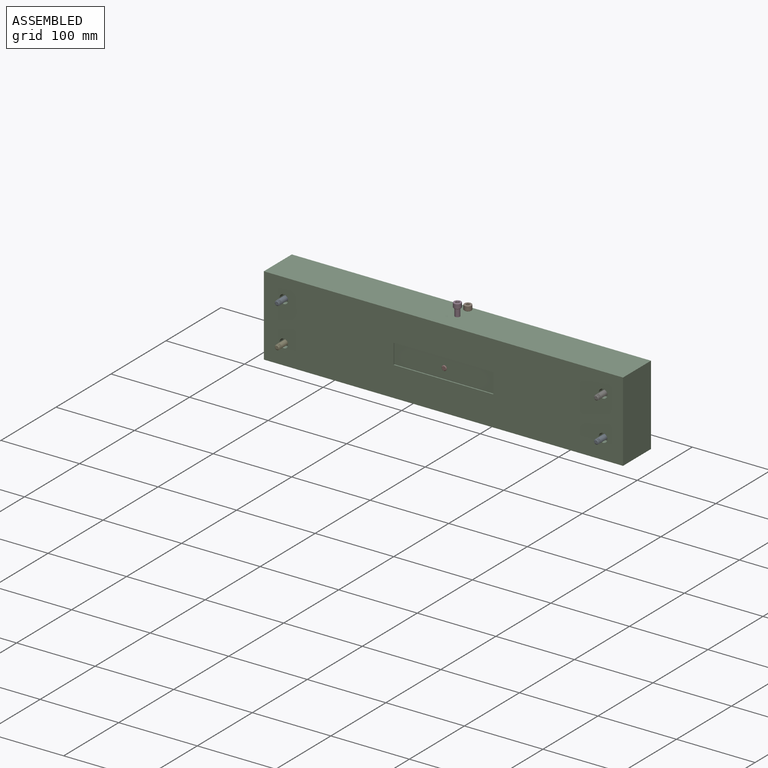
[diagram: assembled view]
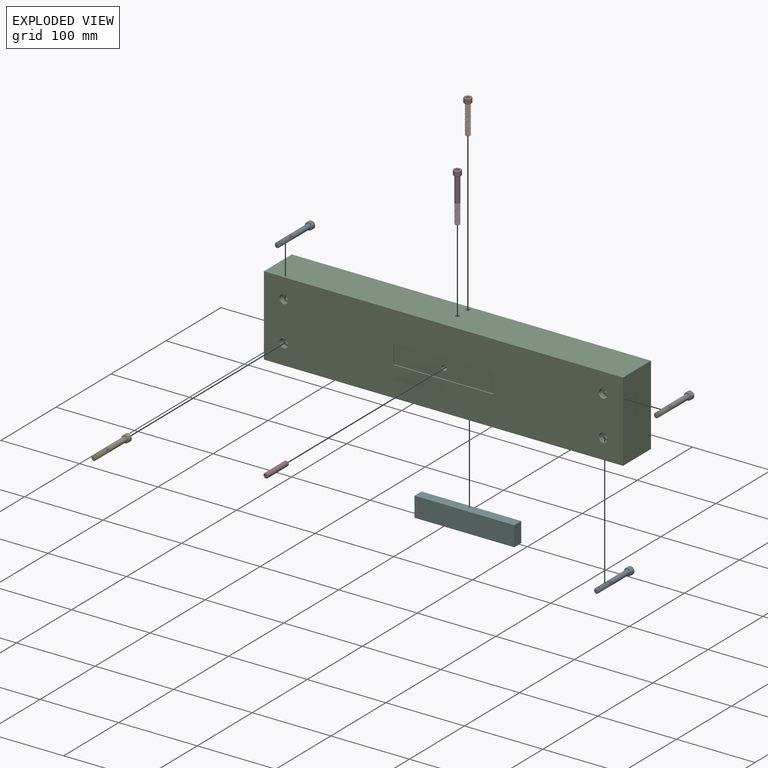
[diagram: exploded view]
GUIDED TOUR — MATED ASSEMBLY (Onshape document 1fcec8c5e49b1f9c84faa3c9, AutoMate assembly 1fcec8c5e49b1f9c84faa3c9_30f333a7dc662cd5ad715a2b_92948891892178a799b8ff19_default)

This assembly has 9 components, labeled P0..P8 below (a component is one placed occurrence of a part; the same part can appear more than once), held together by 8 mates. A mate is a constraint between two components; its type names the relative motion it leaves free:
  CYLINDRICAL — leaves both rotation about and translation along the listed axis free,
  FASTENED — locks the two components together rigidly (no relative motion).
Axis/direction vectors are unit vectors and 'through' points are millimeter coordinates, both in the assembly's world frame.

MATES
  1. FASTENED "Fastened 2": P5 <-> P2, direction (0.000, 0.000, -1.000) through (35.10, -15.30, -119.04) mm
  2. FASTENED "Fastened 6": P2 <-> P0, direction (0.000, 1.000, 0.000) through (238.30, -15.30, -131.74) mm
  3. CYLINDRICAL "Cylindrical 2": P1 <-> P2, axis (0.000, 0.000, -1.000) through (35.10, -15.30, -93.61) mm
  4. FASTENED "Fastened 5": P2 <-> P6, direction (0.000, 1.000, 0.000) through (238.30, -15.30, -80.94) mm
  5. CYLINDRICAL "Cylindrical 1": P2 <-> P3, axis (0.000, 0.000, 1.000) through (35.10, -34.35, -55.54) mm
  6. FASTENED "Fastened 7": P2 <-> P8, direction (0.000, 1.000, 0.000) through (-168.10, -15.30, -80.94) mm
  7. FASTENED "Fastened 1": P2 <-> P7, direction (0.000, 1.000, 0.000) through (35.10, -21.65, -106.34) mm
  8. FASTENED "Fastened 4": P2 <-> P4, direction (0.000, -1.000, 0.000) through (-168.10, -15.30, -131.74) mm

ASSEMBLY ORDER
  1. P2 — the base component [order heuristic]
  2. P5 — core [order heuristic]
  3. P3 — core [order heuristic]
  4. P4 — core [order heuristic]
  5. P1 — core [order heuristic]
  6. P8 [order verified]
  7. P6 [order verified]
  8. P0 [order verified]
  9. P7 [order verified]
(P0, P6, P8 verified with a relaxed clearance tolerance: the source model stores slight part interference there.)
Order-tag legend:
  [order verified] — this step's position reverses a verified removal order: the component was checked to insert without passing through the ones already placed.
  [order heuristic] — the first 5 components form the assembly's core: parts whose collision-free extraction could not be verified, listed in mate-graph order.

Of the 9 components, 1 carries the full construction recipe — the FeatureScript program that regenerates the part's solid from scratch; the rest are supplied as boundary geometry only.
Each toured component is shown spotlighted twice — in the assembled view, then in the exploded view, where a leader line traces a displaced component back to its assembled socket (saturated green if recipe-attached, orange if geometry-only; every other component desaturated gray) — followed by its recipe or geometry summary and the mates that hold it.
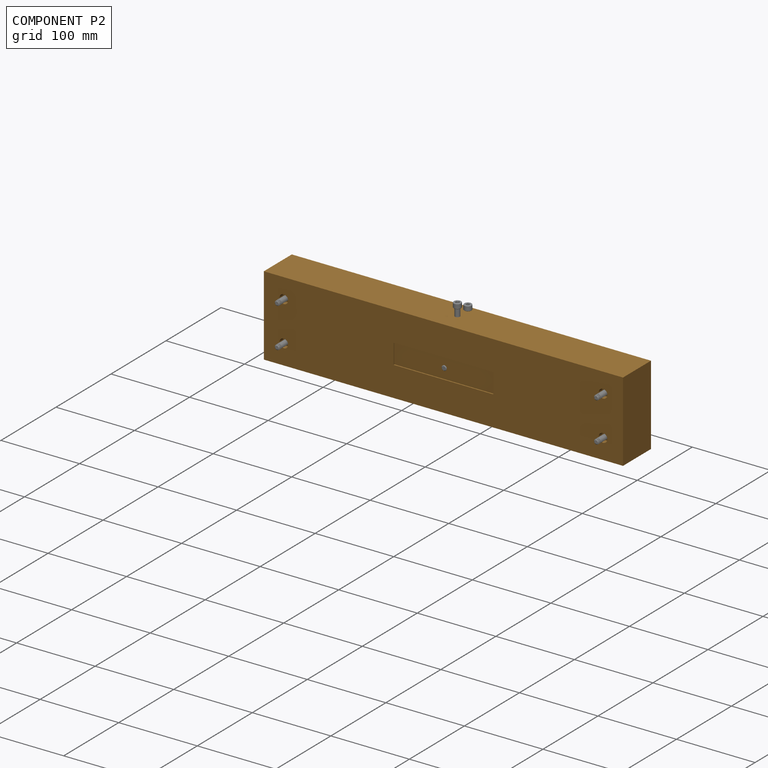
[diagram: component P2 — assembled]
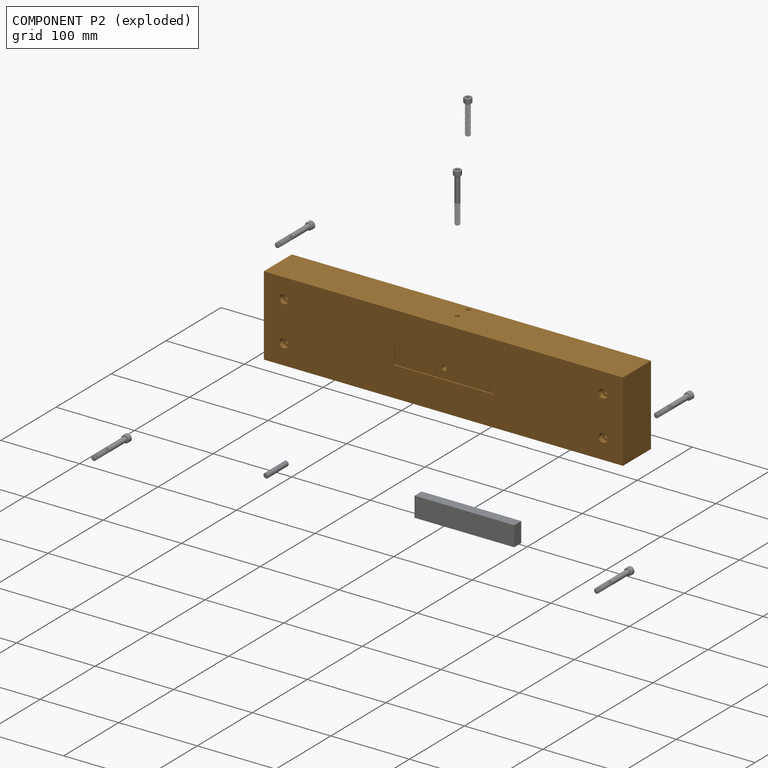
[diagram: component P2 — exploded]
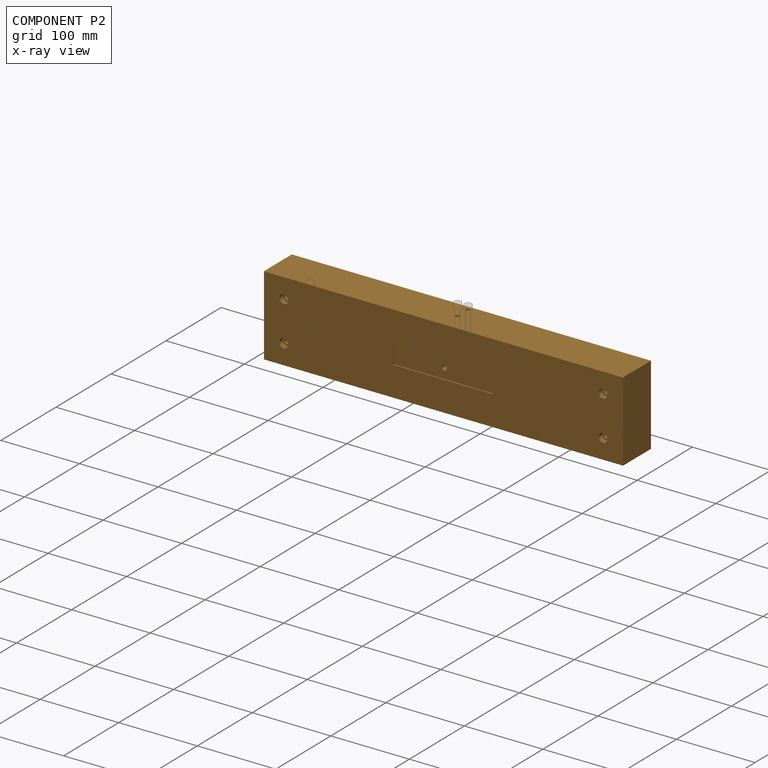
[diagram: component P2 — x-ray view]
COMPONENT P2 — geometry summary (no construction recipe available for this part):
  bounding box: 457.2 x 101.6 x 50.8 mm
  B-rep topology: 1 solid, 39 faces, 172 edges
  volume: 2300474 mm^3 (97% of its bounding box)
  symmetry: mirror-symmetric across its x mid-plane
Held by: FASTENED mate "Fastened 2" to P5; FASTENED mate "Fastened 6" to P0; CYLINDRICAL mate "Cylindrical 2" to P1; FASTENED mate "Fastened 5" to P6; CYLINDRICAL mate "Cylindrical 1" to P3; FASTENED mate "Fastened 7" to P8; FASTENED mate "Fastened 1" to P7; FASTENED mate "Fastened 4" to P4.
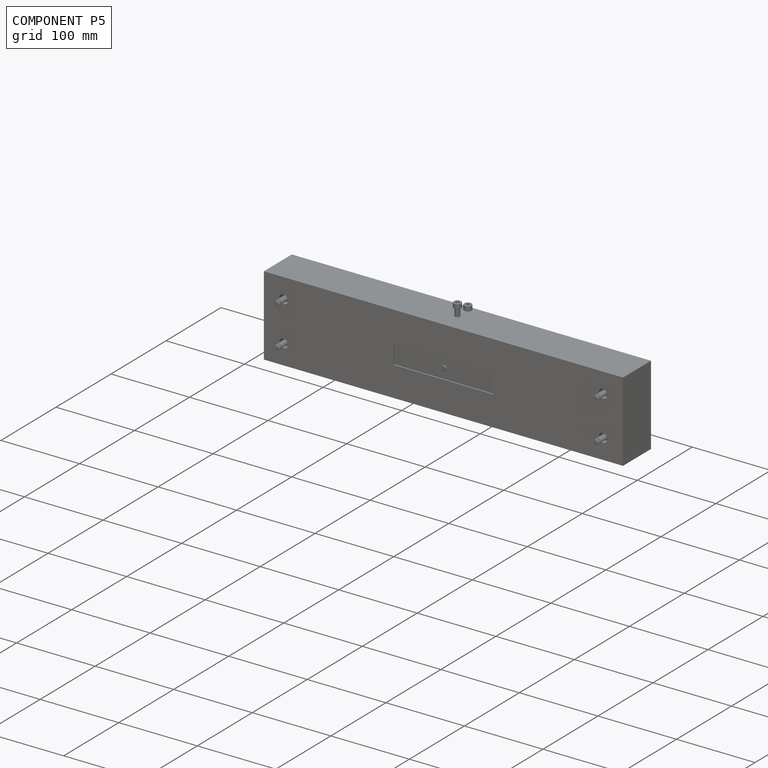
[diagram: component P5 — assembled]
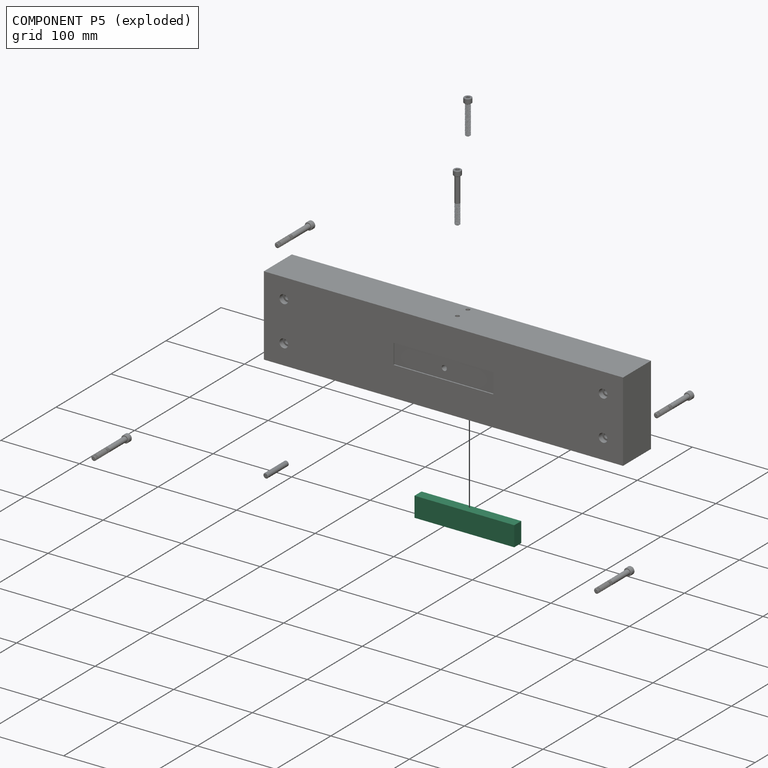
[diagram: component P5 — exploded]
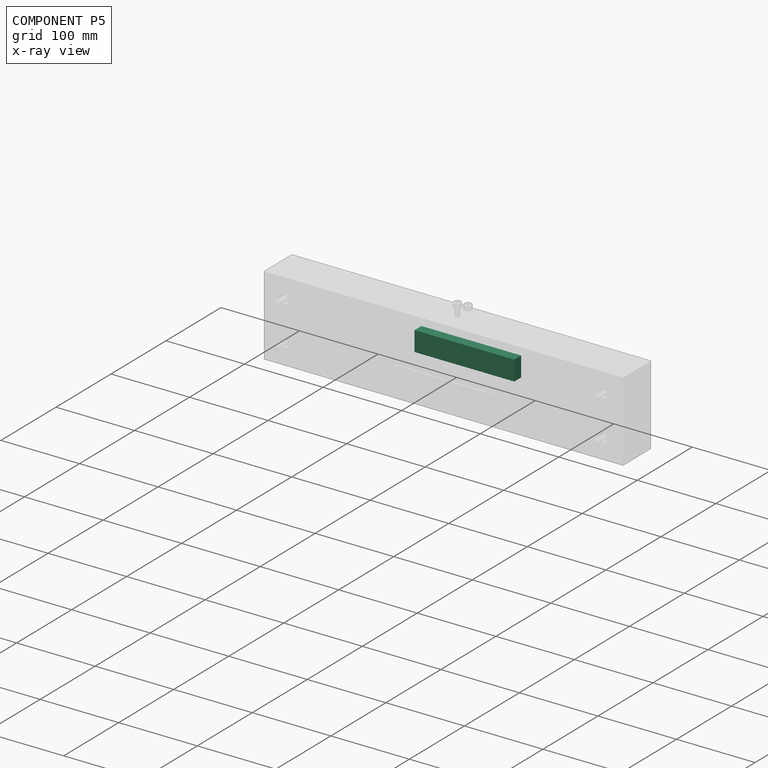
[diagram: component P5 — x-ray view]
COMPONENT P5 — recipe-attached (CADFS 00336776, mesh-verified: the recipe's output STEP matches this component's geometry to below the mesh-comparison resolution (tessellation chordal tolerance ~0.195 mm)).
Held by: FASTENED mate "Fastened 2" to P2.
Construction recipe (FeatureScript — the CAD program that rebuilds this solid; sketch coordinates are in the units given by the * unit suffixes, e.g. mm):

FeatureScript 1511;
import(path : "onshape/std/geometry.fs", version : "1511.0");
import(path : "onshape/std/common.fs", version : "1511.0");
const mm = millimeter;
const VERTEX = EntityType.VERTEX;
const EDGE = EntityType.EDGE;
const FACE = EntityType.FACE;
const BODY = EntityType.BODY;
function v(x, y){return vector(x, y);}
function OD(order){return orderDisambiguation(order);}
function OSD(set){return originalSetDisambiguation(set);}
function TD(topology){return topologyDisambiguation(topology);}
function TDD(query){return trueDependencyDisambiguation(query);}
function sQuery(a, b, c) {return sketchEntityQuery(a, b, c);}

annotation { "Feature Type Name" : "Feature", "Feature Type Description" : "" }
export const myFeature = defineFeature(function(context is Context, id is Id, definition is map)
    precondition{}
    {
        {
            var Q0;
            Q0=qCreatedBy(makeId("Top.planeOp"),FACE);
            var sketch = newSketch(context, id + "F0", { "sketchPlane" : qUnion([Q0])});
            skLineSegment(sketch, "E0.bottom", {"start": v(0, 0) * mm, "end": v(25.4, 0) * mm});
            skLineSegment(sketch, "E0.top", {"start": v(0, 12.7) * mm, "end": v(25.4, 12.7) * mm});
            skLineSegment(sketch, "E0.left", {"start": v(0, 0) * mm, "end": v(0, 12.7) * mm});
            skLineSegment(sketch, "E0.right", {"start": v(25.4, 0) * mm, "end": v(25.4, 12.7) * mm});
            skSolve(sketch);
        }
        {
            var Q0;
            Q0=makeQuery(id+"F0.imprint","IMPRINT",FACE,{"disambiguationData":[TD([[makeQuery(id+"F0.imprint","IMPRINT",EDGE,{"derivedFrom":sQuery(id+"F0.wireOp",EDGE,"E0.bottom")}),1.0]])]});
            extrude(context, id + "F1", {"entities" : qUnion([Q0]), "depth" : 127 * mm});
        }
        {
            var Q0;
            Q0=makeQuery(id+"F1.opExtrude","SWEPT_FACE",FACE,{"disambiguationData":[OSD([sQuery(id+"F0.wireOp",EDGE,"E0.top")])]});
            var sketch = newSketch(context, id + "F2", { "sketchPlane" : qUnion([Q0])});
            skLineSegment(sketch, "E1.left", {"start": v(-10.98, 25.4) * mm, "end": v(-10.98, 101.6) * mm});
            skLineSegment(sketch, "E1.right", {"start": v(-14.16, 25.4) * mm, "end": v(-14.16, 101.6) * mm});
            skPoint(sketch, "E2", {"position": v(-12.57, 22.86) * mm});
            skLineSegment(sketch, "E3", {"start": v(-10.98, 25.4) * mm, "end": v(-12.57, 22.86) * mm});
            skLineSegment(sketch, "E4", {"start": v(-14.16, 25.4) * mm, "end": v(-12.57, 22.86) * mm});
            skPoint(sketch, "E5", {"position": v(-12.57, 104.14) * mm});
            skLineSegment(sketch, "E6", {"start": v(-10.98, 101.6) * mm, "end": v(-12.57, 104.14) * mm});
            skLineSegment(sketch, "E7", {"start": v(-12.57, 104.14) * mm, "end": v(-14.16, 101.6) * mm});
            skSolve(sketch);
        }
        {
            var Q0;
            Q0=makeQuery(id+"F2.imprint","IMPRINT",FACE,{"disambiguationData":[TD([[makeQuery(id+"F2.imprint","IMPRINT",EDGE,{"derivedFrom":sQuery(id+"F2.wireOp",EDGE,"E1.left")}),1.0]])]});
            extrude(context, id + "F3", {"entities" : qUnion([Q0]), "operationType" : NewBodyOperationType.REMOVE, "oppositeDirection" : true, "depth" : 3.17 * mm});
        }
    });
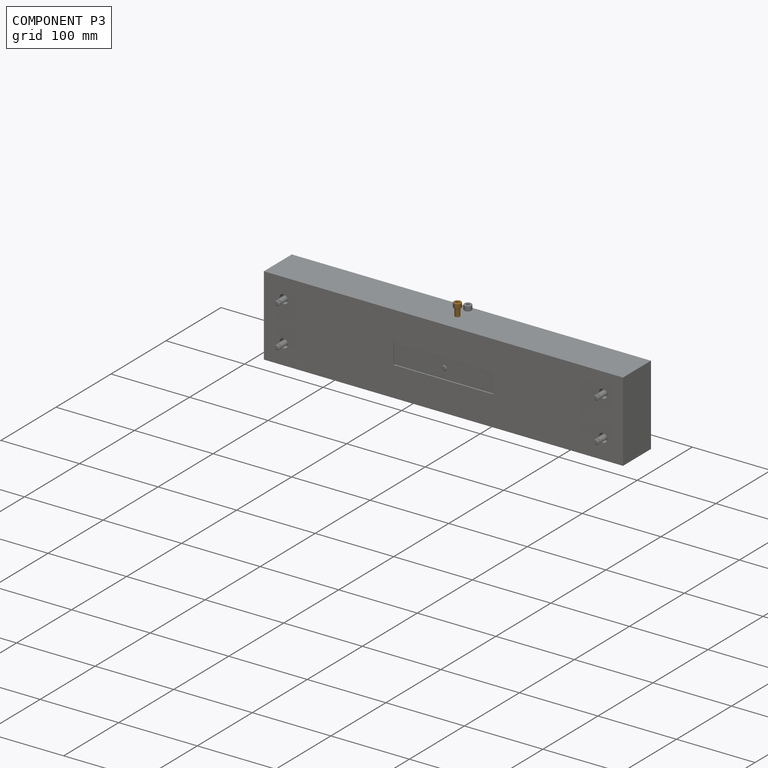
[diagram: component P3 — assembled]
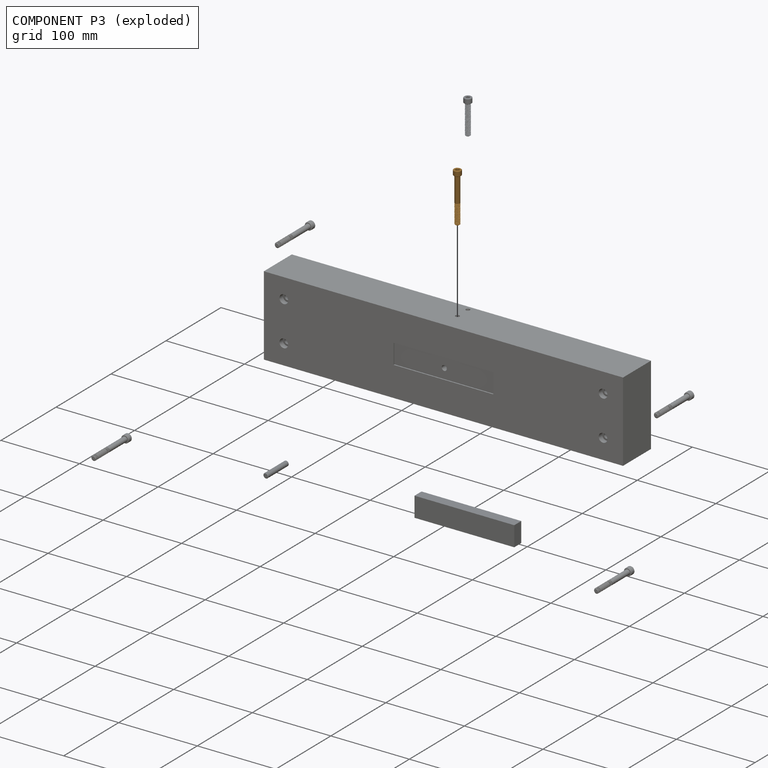
[diagram: component P3 — exploded]
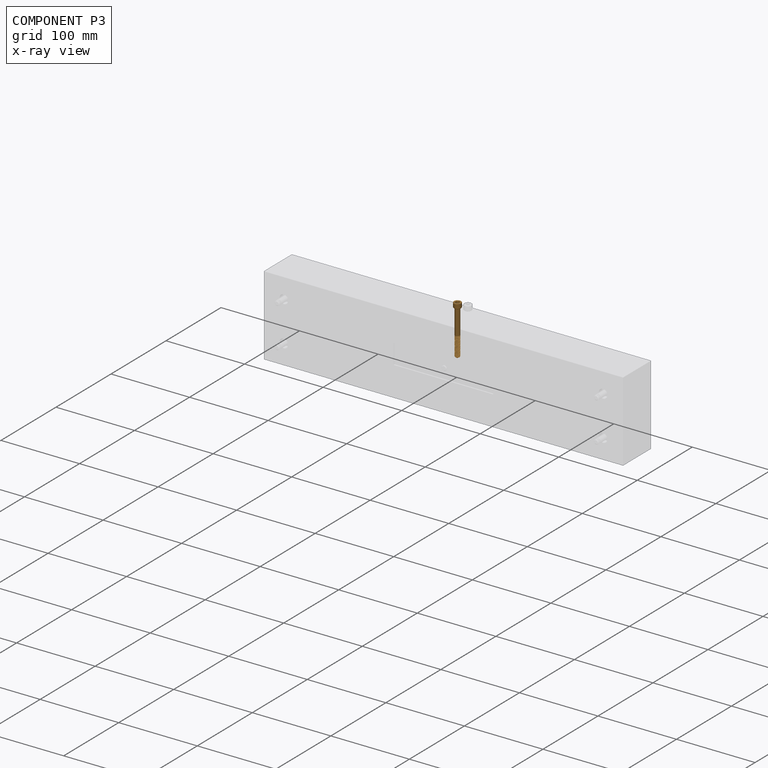
[diagram: component P3 — x-ray view]
COMPONENT P3 — geometry summary (no construction recipe available for this part):
  bounding box: 64.5 x 10.0 x 10.0 mm
  B-rep topology: 1 solid, 44 faces, 212 edges
  volume: 2040 mm^3 (32% of its bounding box)
Held by: CYLINDRICAL mate "Cylindrical 1" to P2.
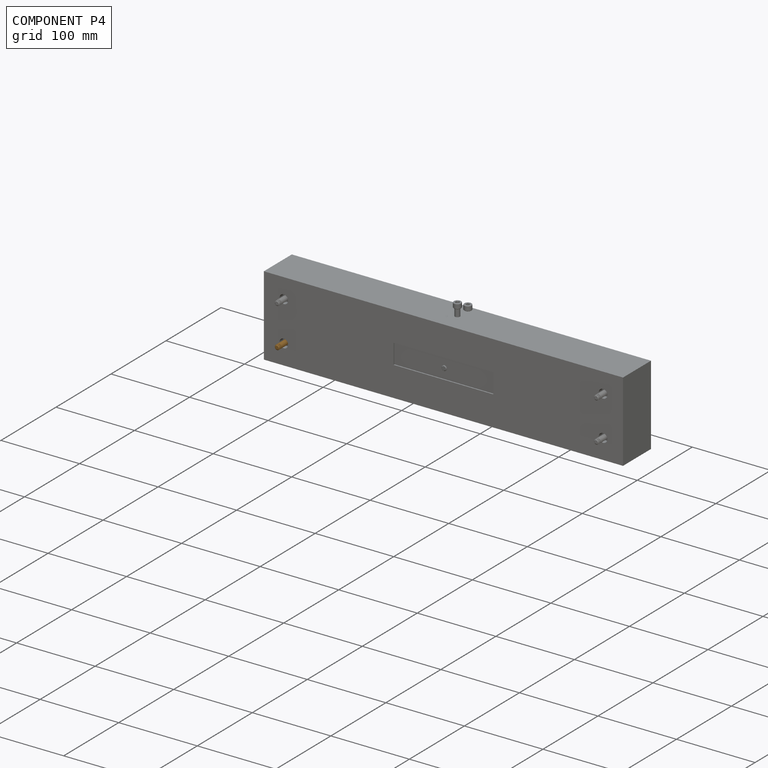
[diagram: component P4 — assembled]
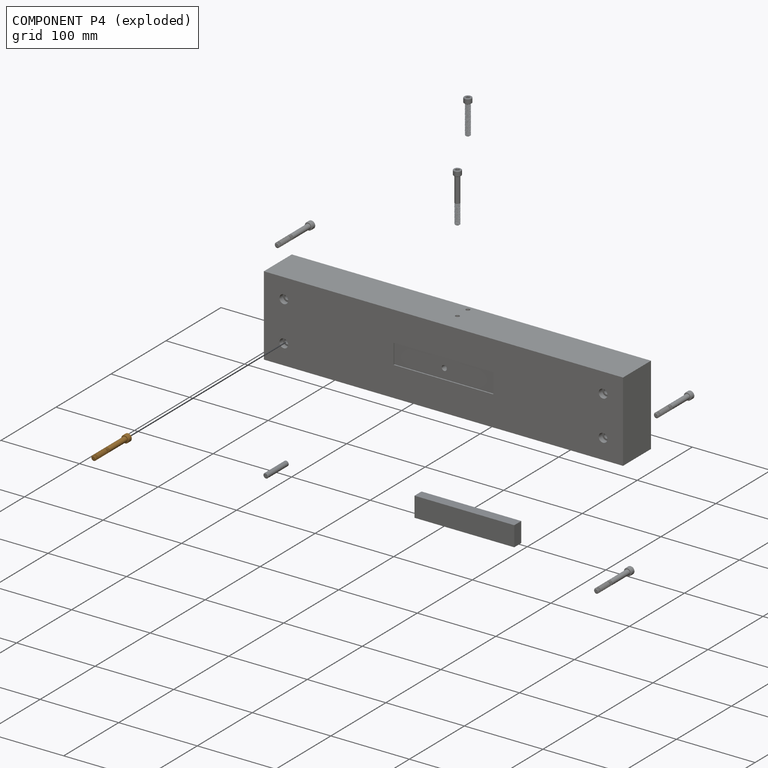
[diagram: component P4 — exploded]
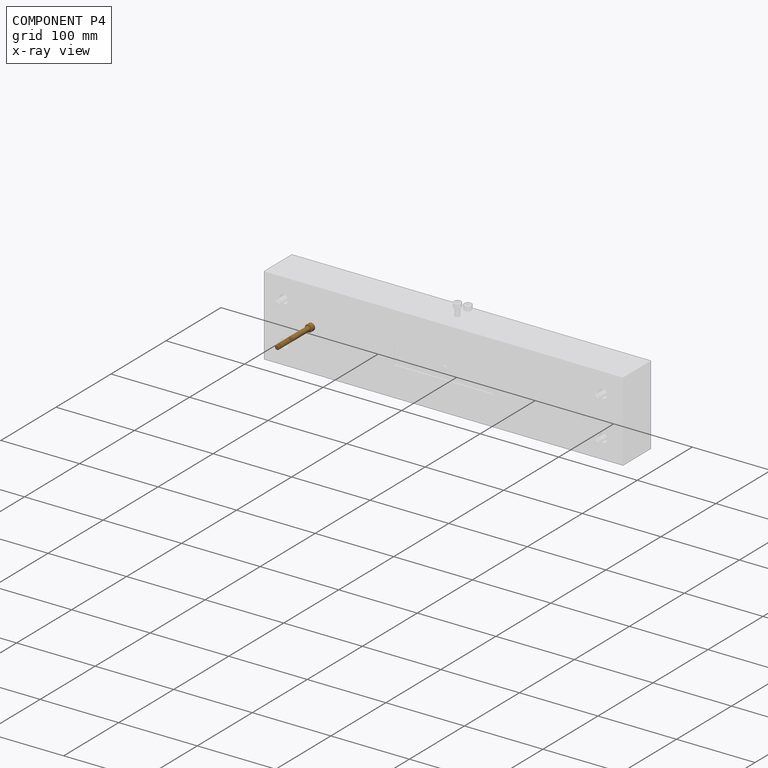
[diagram: component P4 — x-ray view]
COMPONENT P4 — geometry summary (no construction recipe available for this part):
  bounding box: 64.5 x 10.0 x 10.0 mm
  B-rep topology: 1 solid, 44 faces, 212 edges
  volume: 2040 mm^3 (32% of its bounding box)
Held by: FASTENED mate "Fastened 4" to P2.
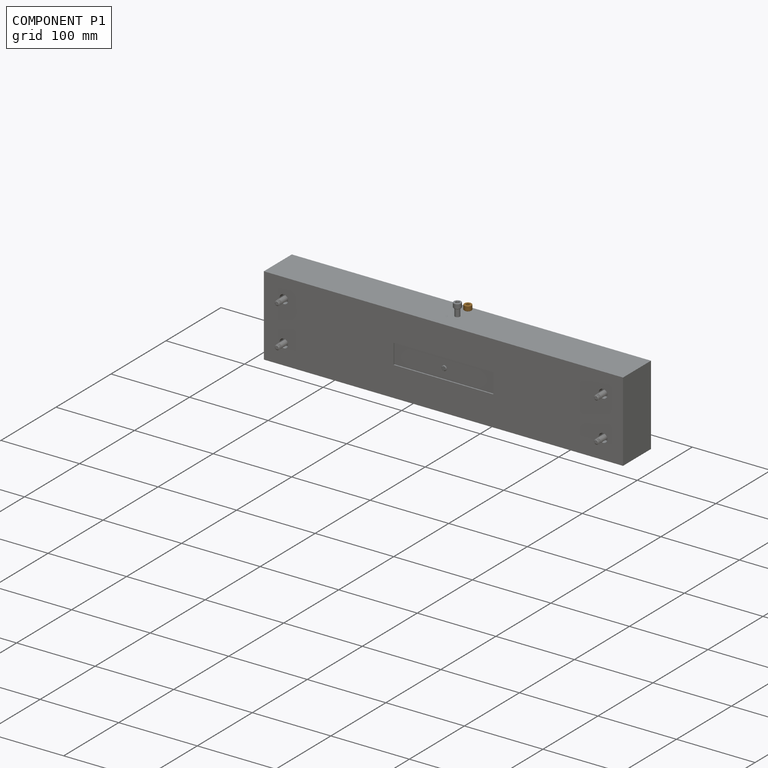
[diagram: component P1 — assembled]
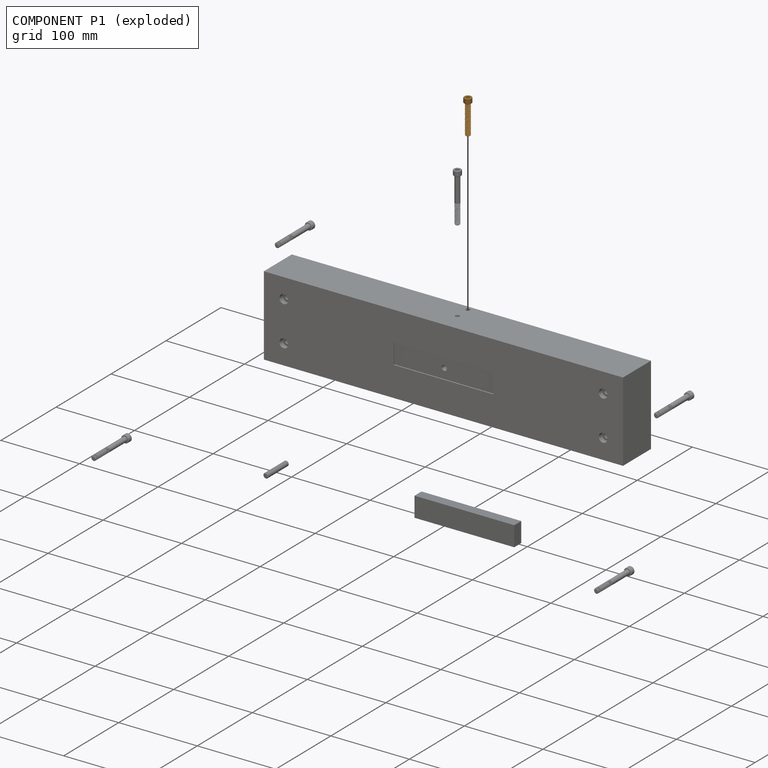
[diagram: component P1 — exploded]
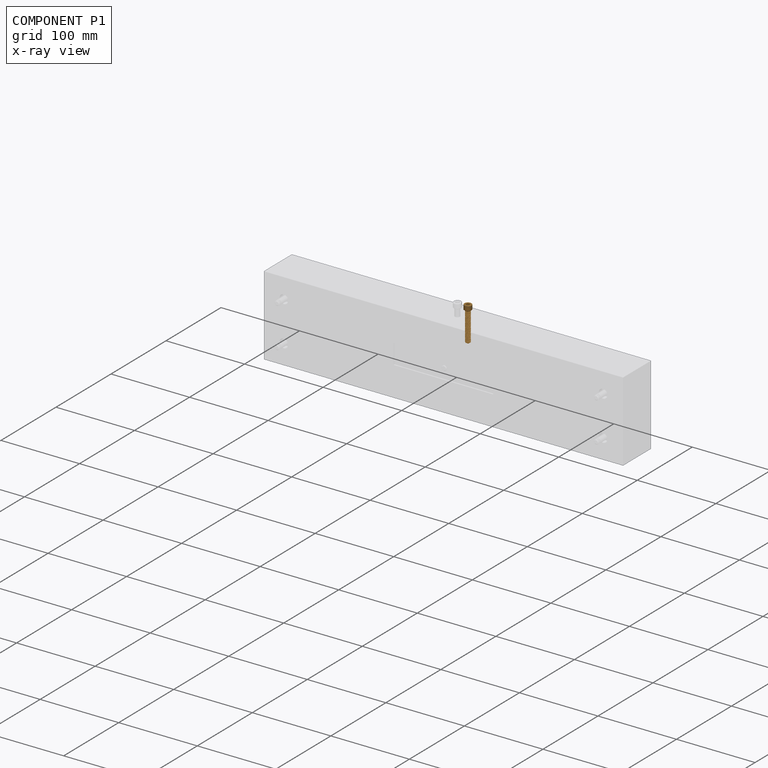
[diagram: component P1 — x-ray view]
COMPONENT P1 — geometry summary (no construction recipe available for this part):
  bounding box: 46.0 x 10.6 x 10.6 mm
  B-rep topology: 1 solid, 24 faces, 92 edges
  volume: 1100 mm^3 (21% of its bounding box)
  symmetry: revolution-symmetric about the y axis through its bounding-box center
Held by: CYLINDRICAL mate "Cylindrical 2" to P2.
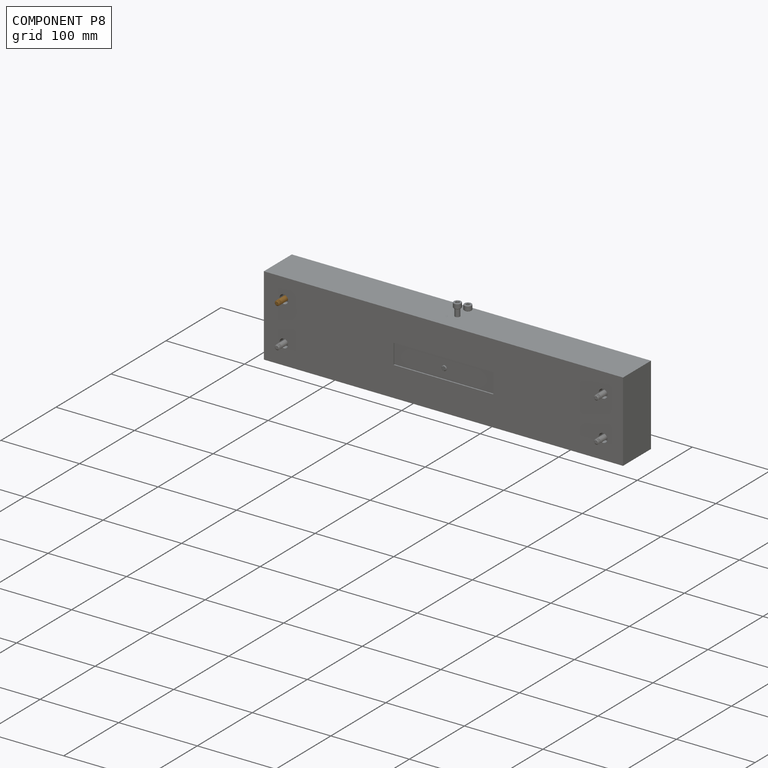
[diagram: component P8 — assembled]
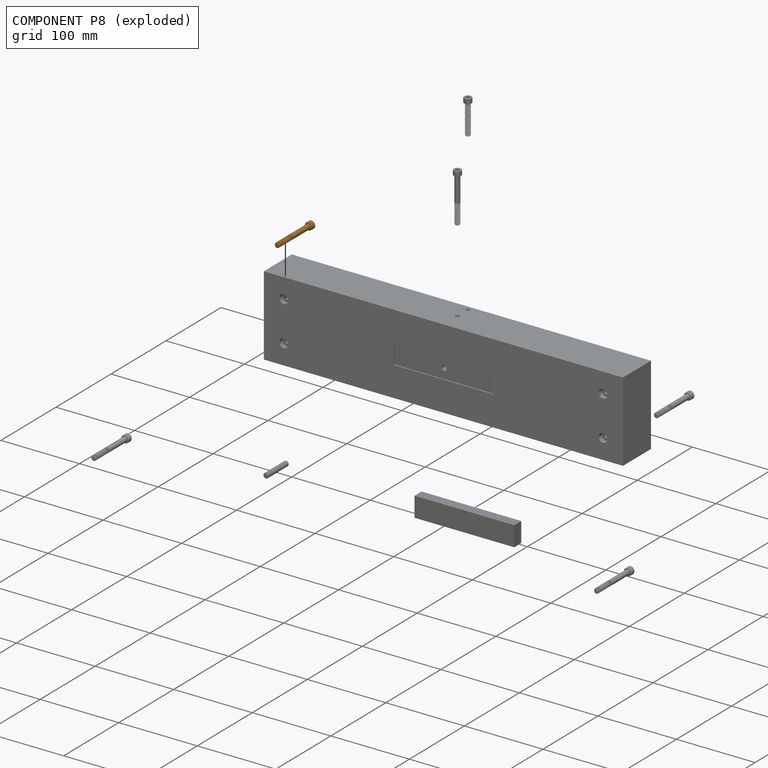
[diagram: component P8 — exploded]
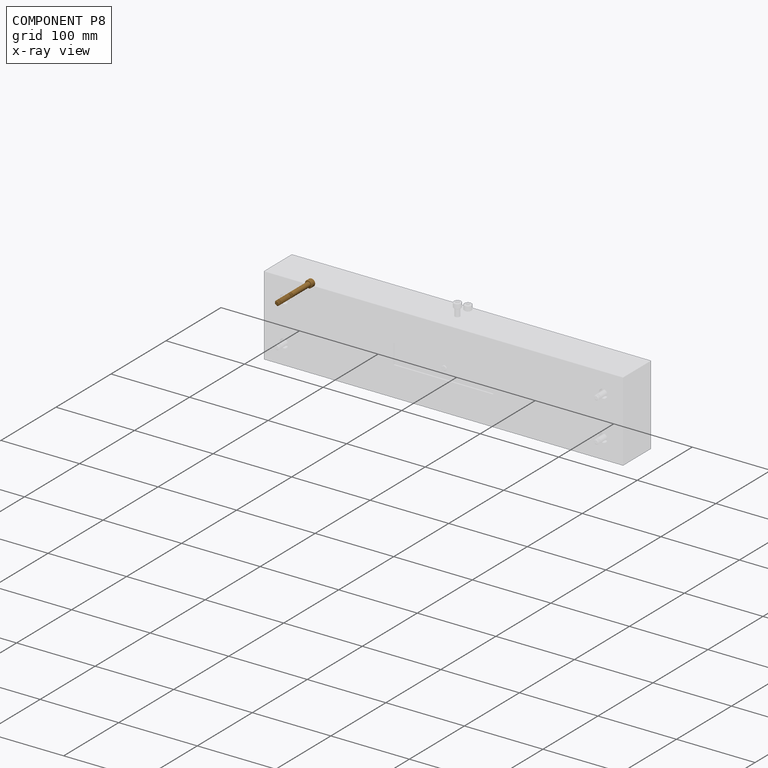
[diagram: component P8 — x-ray view]
COMPONENT P8 — geometry summary (no construction recipe available for this part):
  bounding box: 64.5 x 10.0 x 10.0 mm
  B-rep topology: 1 solid, 44 faces, 212 edges
  volume: 2040 mm^3 (32% of its bounding box)
Held by: FASTENED mate "Fastened 7" to P2.
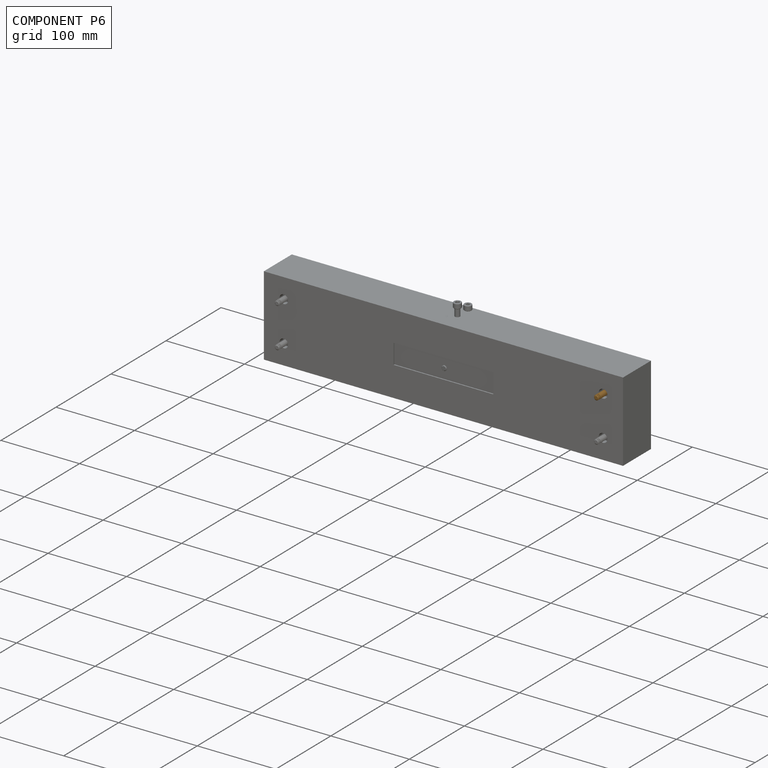
[diagram: component P6 — assembled]
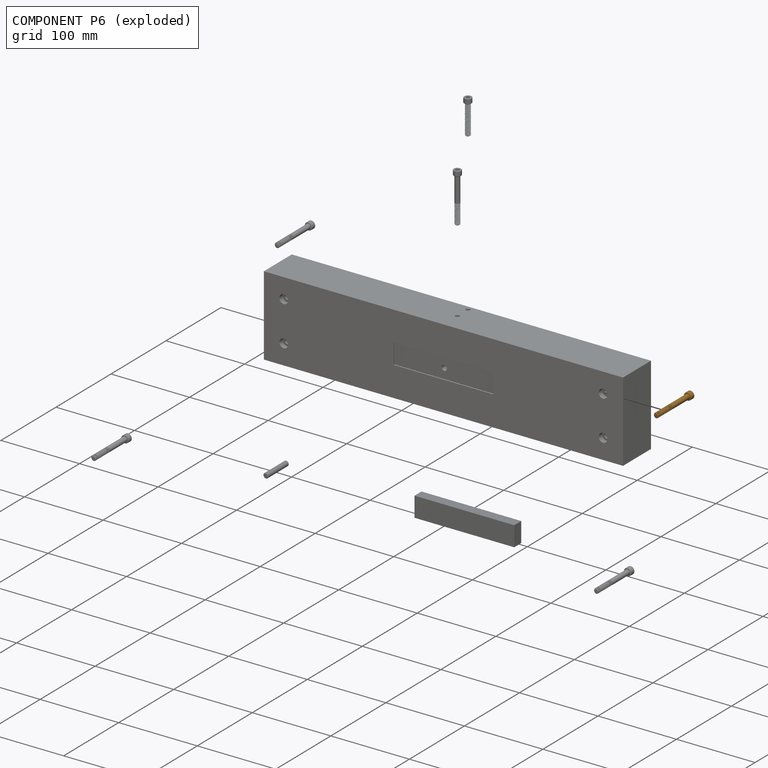
[diagram: component P6 — exploded]
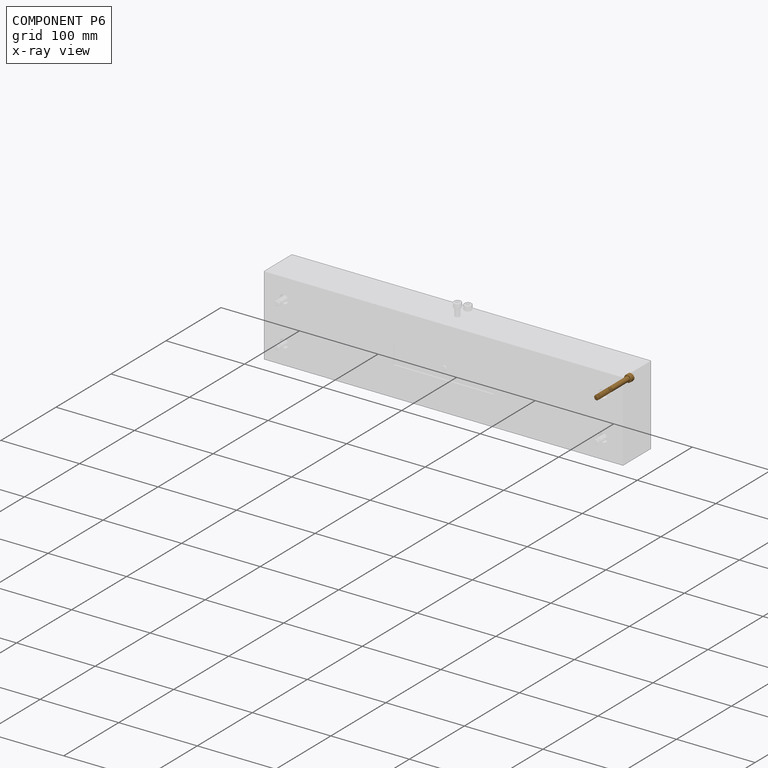
[diagram: component P6 — x-ray view]
COMPONENT P6 — geometry summary (no construction recipe available for this part):
  bounding box: 64.5 x 10.0 x 10.0 mm
  B-rep topology: 1 solid, 44 faces, 212 edges
  volume: 2040 mm^3 (32% of its bounding box)
Held by: FASTENED mate "Fastened 5" to P2.
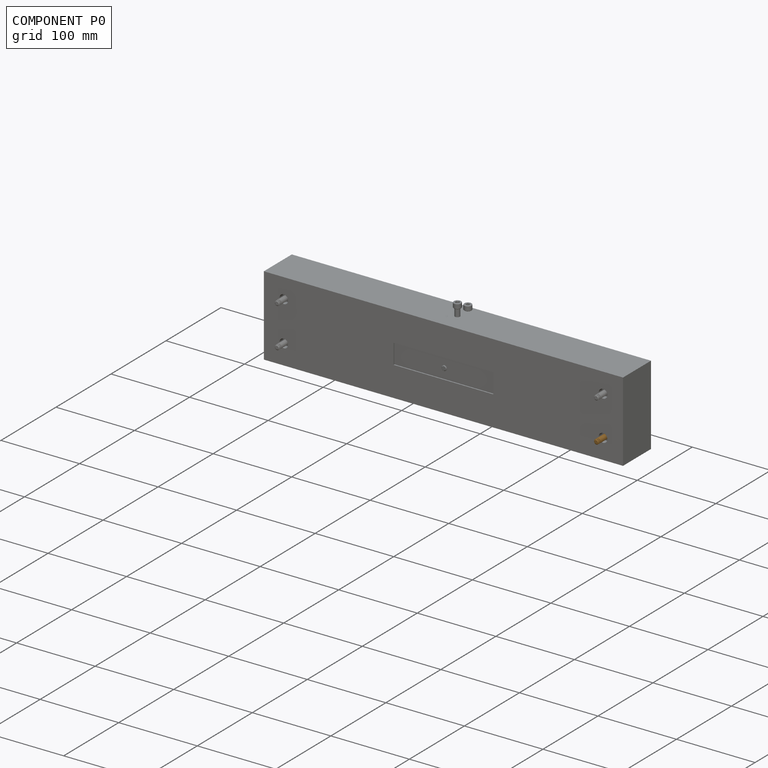
[diagram: component P0 — assembled]
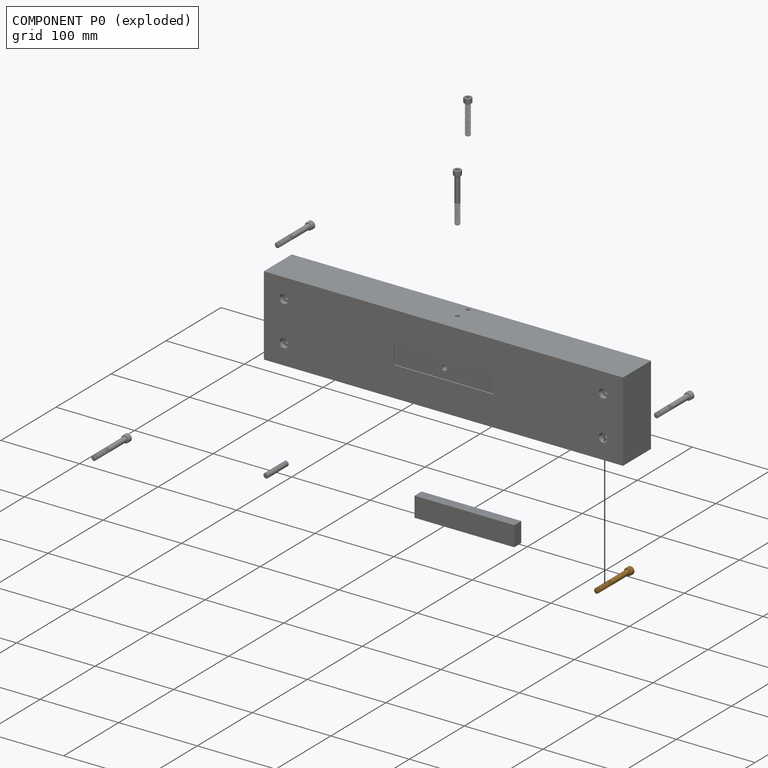
[diagram: component P0 — exploded]
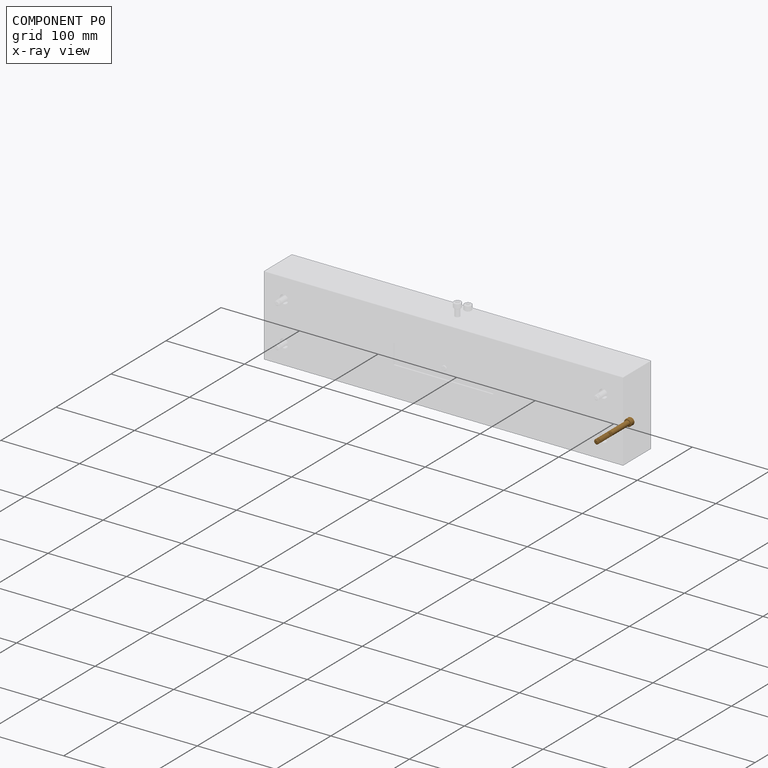
[diagram: component P0 — x-ray view]
COMPONENT P0 — geometry summary (no construction recipe available for this part):
  bounding box: 64.5 x 10.0 x 10.0 mm
  B-rep topology: 1 solid, 44 faces, 212 edges
  volume: 2040 mm^3 (32% of its bounding box)
Held by: FASTENED mate "Fastened 6" to P2.
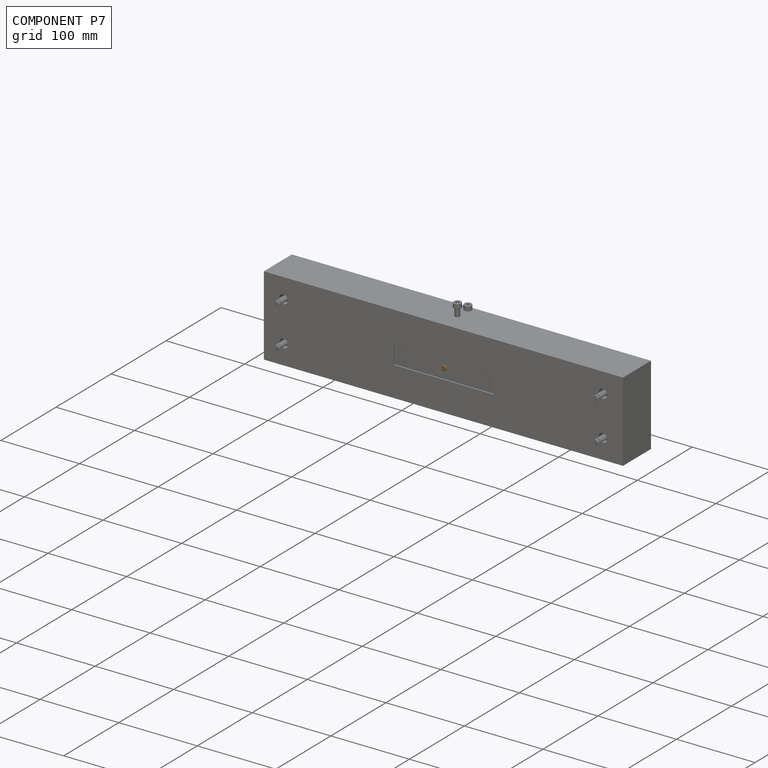
[diagram: component P7 — assembled]
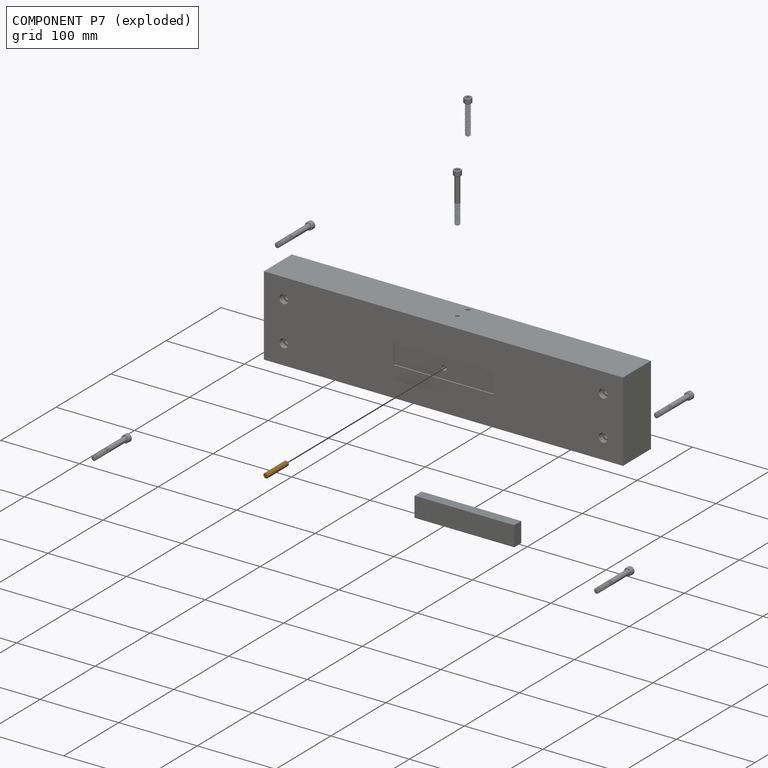
[diagram: component P7 — exploded]
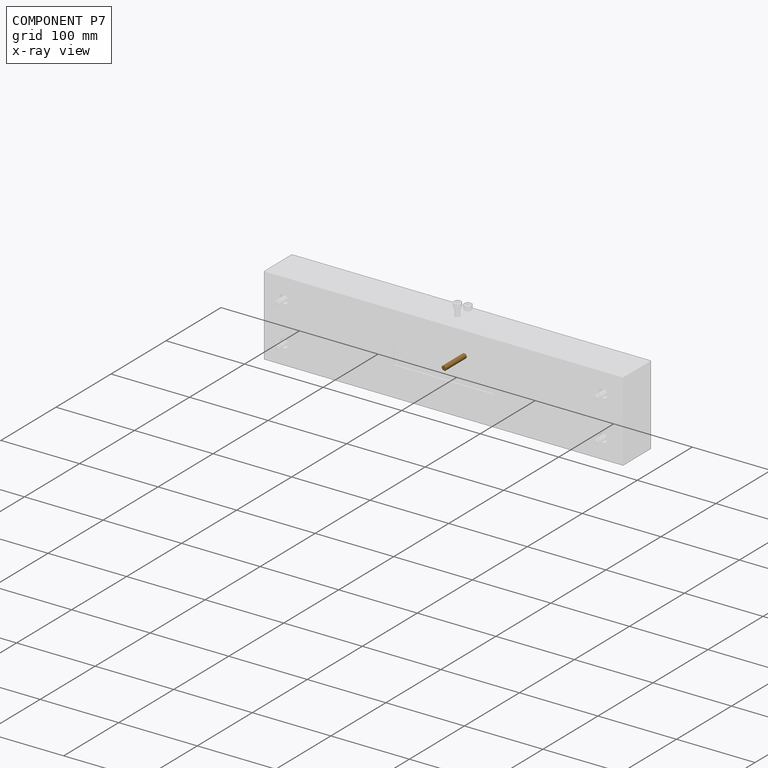
[diagram: component P7 — x-ray view]
COMPONENT P7 — geometry summary (no construction recipe available for this part):
  bounding box: 38.1 x 6.4 x 6.4 mm
  B-rep topology: 1 solid, 5 faces, 14 edges
  volume: 1199 mm^3 (78% of its bounding box)
  symmetry: revolution-symmetric about the x axis through its bounding-box center; 2-fold rotationally symmetric about the y axis; 2-fold rotationally symmetric about the z axis; mirror-symmetric across its x mid-plane, y mid-plane, z mid-plane
Held by: FASTENED mate "Fastened 1" to P2.
PROVENANCE & LICENSES
Assembly (occurrences, transforms, mates, per-part STEP geometry): AutoMate dataset, Zenodo record 7776208, CC0.
Construction recipes: CADFS (HuggingFace VladPyatov/CADFS, CC-BY-4.0, layered over the ABC dataset), FeatureScript reconstruction programs keyed by ABC model id.
Join: ABC meta listings map ABC model id -> Onshape documentId; within a shared document, parts are matched by geometric signature (bounding-box dims + volume at 0.1% relative tolerance, exact B-rep face/solid counts).
Verification: 1 of this assembly's 9 components carries a recipe attachment, and every attachment is mesh-verified: the CADFS STEP and the AutoMate member STEP were compared as meshes in their shared local frame (symmetric sampled-point-to-mesh distance); worst across the 1 attachment: below the mesh-comparison resolution (tessellation chordal tolerance ~0.195 mm) on a 130 mm part.
Renders: orthographic iso camera (az 35 / el 25); the floor grid conveys scale (grid pitch printed in each image; no ruler). In the exploded view each component is displaced by its stored offset vector: the offsets alone carry the explosion direction (mate normal/axis signs are not orientation cues and do not encode it), and separation distances are assigned per mate-chain, not proportionally to assembly-order depth.
